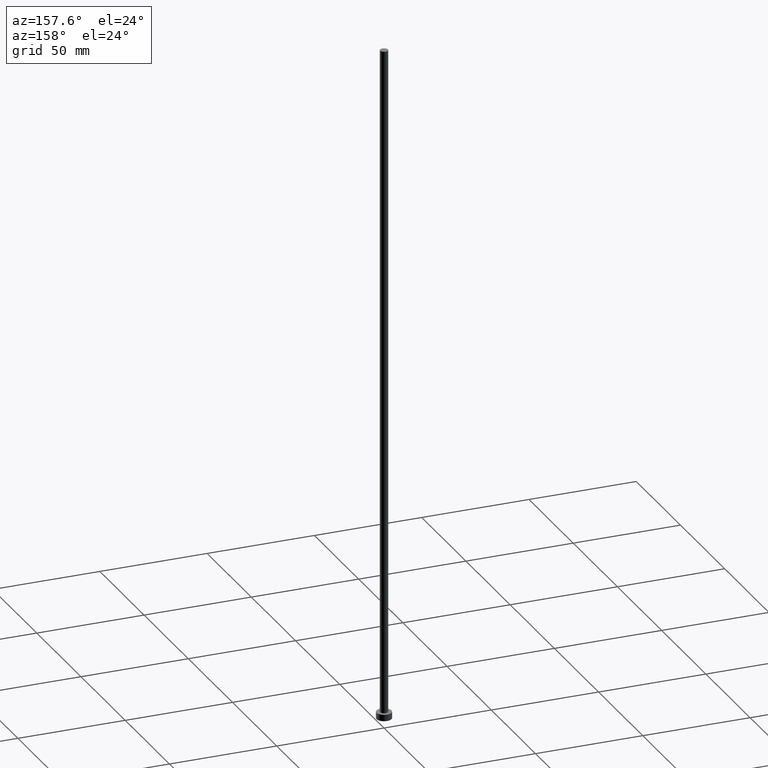
[diagram: clean part render]
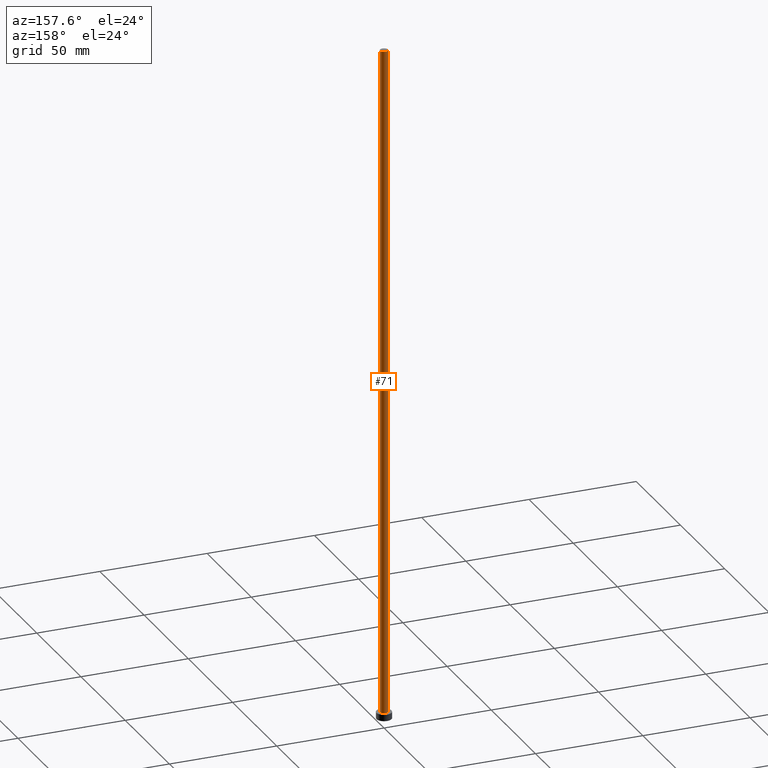
[diagram: same view with one face highlighted and labeled with its STEP entity id]
A machine part, auxiliary view. The second image highlights one B-rep face of the part: STEP entity #71.
In plain terms, the highlighted cylindrical surface (edge-blend (fillet) strip) has radius 1.85 mm, axis along (-0, -0, -1).
Its self-contained STEP definition (entity closure, byte-faithful):
#2 = DIRECTION ( 'NONE',  ( -0.000000000000000000, -0.000000000000000000, -1.000000000000000000 ) ) ;
#10 = VECTOR ( 'NONE', #92, 1000.000000000000000 ) ;
#16 = VERTEX_POINT ( 'NONE', #95 ) ;
#21 = ORIENTED_EDGE ( 'NONE', *, *, #86, .F. ) ;
#22 = CARTESIAN_POINT ( 'NONE',  ( 1.850000000000000089, 2.265596578422603100E-16, 315.0000000000000000 ) ) ;
#32 = AXIS2_PLACEMENT_3D ( 'NONE', #56, #192, #229 ) ;
#37 = VERTEX_POINT ( 'NONE', #136 ) ;
#40 = CARTESIAN_POINT ( 'NONE',  ( -1.850000000000000089, 0.000000000000000000, 3.000000000000000000 ) ) ;
#42 = DIRECTION ( 'NONE',  ( -0.000000000000000000, -0.000000000000000000, -1.000000000000000000 ) ) ;
#48 = CARTESIAN_POINT ( 'NONE',  ( 0.000000000000000000, 0.000000000000000000, 315.0000000000000000 ) ) ;
#56 = CARTESIAN_POINT ( 'NONE',  ( 0.000000000000000000, 0.000000000000000000, 3.000000000000000000 ) ) ;
#59 = CARTESIAN_POINT ( 'NONE',  ( 0.000000000000000000, 0.000000000000000000, 315.0000000000000000 ) ) ;
#69 = ORIENTED_EDGE ( 'NONE', *, *, #130, .T. ) ;
#71 = ADVANCED_FACE ( 'NONE', ( #129 ), #232, .T. ) ;
#77 = LINE ( 'NONE', #22, #185 ) ;
#86 = EDGE_CURVE ( 'NONE', #37, #137, #120, .T. ) ;
#88 = AXIS2_PLACEMENT_3D ( 'NONE', #48, #42, #199 ) ;
#92 = DIRECTION ( 'NONE',  ( -0.000000000000000000, -0.000000000000000000, -1.000000000000000000 ) ) ;
#95 = CARTESIAN_POINT ( 'NONE',  ( 1.850000000000000089, 2.265596578422603100E-16, 315.0000000000000000 ) ) ;
#106 = EDGE_LOOP ( 'NONE', ( #169, #126, #69, #21 ) ) ;
#115 = CARTESIAN_POINT ( 'NONE',  ( -1.850000000000000089, 0.000000000000000000, 315.0000000000000000 ) ) ;
#120 = LINE ( 'NONE', #115, #10 ) ;
#126 = ORIENTED_EDGE ( 'NONE', *, *, #142, .T. ) ;
#129 = FACE_OUTER_BOUND ( 'NONE', #106, .T. ) ;
#130 = EDGE_CURVE ( 'NONE', #240, #137, #253, .T. ) ;
#136 = CARTESIAN_POINT ( 'NONE',  ( -1.850000000000000089, 0.000000000000000000, 315.0000000000000000 ) ) ;
#137 = VERTEX_POINT ( 'NONE', #40 ) ;
#142 = EDGE_CURVE ( 'NONE', #16, #240, #77, .T. ) ;
#160 = CIRCLE ( 'NONE', #191, 1.850000000000000089 ) ;
#169 = ORIENTED_EDGE ( 'NONE', *, *, #189, .F. ) ;
#185 = VECTOR ( 'NONE', #2, 1000.000000000000000 ) ;
#189 = EDGE_CURVE ( 'NONE', #16, #37, #160, .T. ) ;
#191 = AXIS2_PLACEMENT_3D ( 'NONE', #59, #236, #197 ) ;
#192 = DIRECTION ( 'NONE',  ( 0.000000000000000000, 0.000000000000000000, 1.000000000000000000 ) ) ;
#195 = CARTESIAN_POINT ( 'NONE',  ( 1.850000000000000089, 2.265596578422603100E-16, 3.000000000000000000 ) ) ;
#197 = DIRECTION ( 'NONE',  ( 1.000000000000000000, 0.000000000000000000, 0.000000000000000000 ) ) ;
#199 = DIRECTION ( 'NONE',  ( -1.000000000000000000, 0.000000000000000000, 0.000000000000000000 ) ) ;
#229 = DIRECTION ( 'NONE',  ( 1.000000000000000000, 0.000000000000000000, 0.000000000000000000 ) ) ;
#232 = CYLINDRICAL_SURFACE ( 'NONE', #88, 1.850000000000000089 ) ;
#236 = DIRECTION ( 'NONE',  ( 0.000000000000000000, 0.000000000000000000, 1.000000000000000000 ) ) ;
#240 = VERTEX_POINT ( 'NONE', #195 ) ;
#253 = CIRCLE ( 'NONE', #32, 1.850000000000000089 ) ;